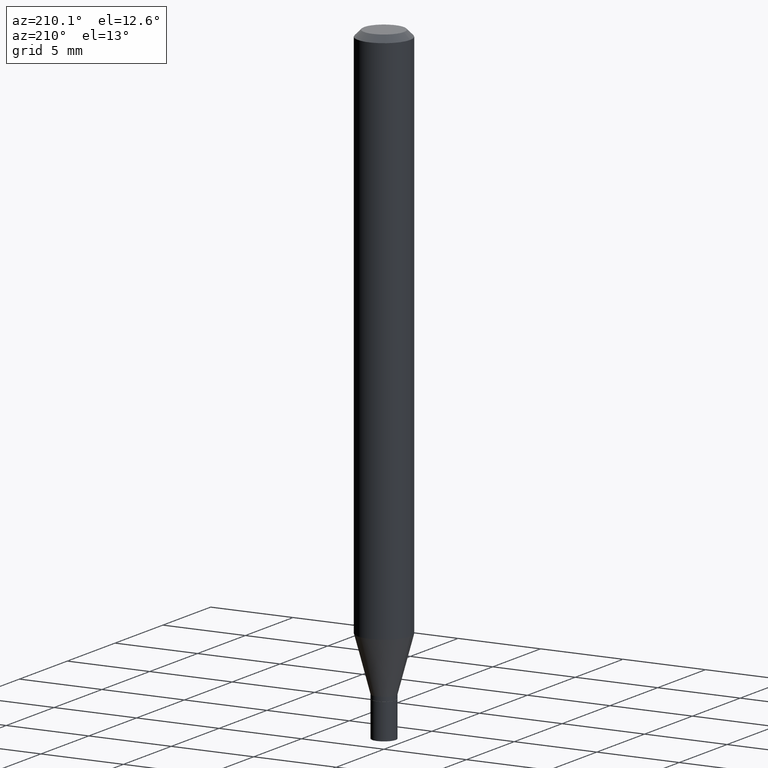
[diagram: clean part render]
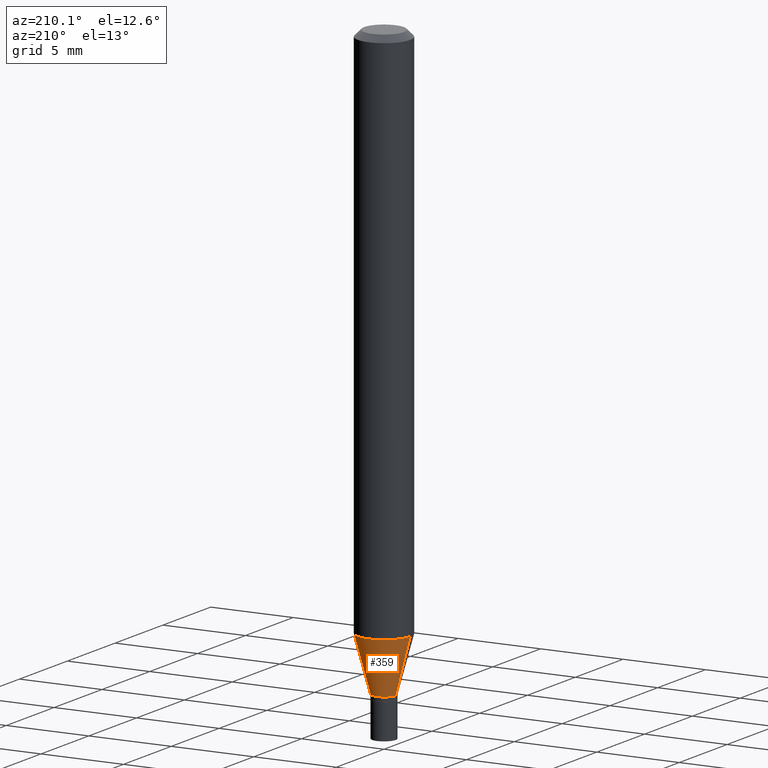
[diagram: same view with one face highlighted and labeled with its STEP entity id]
A machine part, auxiliary view. The second image highlights one B-rep face of the part: STEP entity #359.
In plain terms, the highlighted conical surface has half-angle 15 deg.
Its self-contained STEP definition (entity closure, byte-faithful):
#18 = AXIS2_PLACEMENT_3D ( 'NONE', #85, #369, #216 ) ;
#21 = CARTESIAN_POINT ( 'NONE',  ( -0.02799999999999992426, -4.362728020290356187E-15, -1.406000000000000139 ) ) ;
#29 = EDGE_CURVE ( 'NONE', #347, #386, #73, .T. ) ;
#32 = VERTEX_POINT ( 'NONE', #256 ) ;
#45 = EDGE_CURVE ( 'NONE', #32, #347, #60, .T. ) ;
#56 = DIRECTION ( 'NONE',  ( -2.445468806185136597E-29, 3.491481338843145583E-15, 1.000000000000000000 ) ) ;
#60 = CIRCLE ( 'NONE', #18, 0.02799999999999992426 ) ;
#73 = LINE ( 'NONE', #260, #337 ) ;
#82 = EDGE_CURVE ( 'NONE', #311, #386, #336, .T. ) ;
#85 = CARTESIAN_POINT ( 'NONE',  ( 3.438329141496302499E-29, -4.909022762413463673E-15, -1.406000000000000139 ) ) ;
#87 = DIRECTION ( 'NONE',  ( 1.000000000000000000, -6.982962677686282488E-15, 0.000000000000000000 ) ) ;
#183 = EDGE_CURVE ( 'NONE', #32, #311, #280, .T. ) ;
#197 = ORIENTED_EDGE ( 'NONE', *, *, #82, .F. ) ;
#216 = DIRECTION ( 'NONE',  ( 1.000000000000000000, -6.982962677686282488E-15, 0.000000000000000000 ) ) ;
#225 = CARTESIAN_POINT ( 'NONE',  ( -0.06250000000000000000, -4.015385244180076930E-15, -1.277244247138873634 ) ) ;
#236 = ORIENTED_EDGE ( 'NONE', *, *, #29, .T. ) ;
#256 = CARTESIAN_POINT ( 'NONE',  ( 0.02799999999999992426, -5.104545717388679172E-15, -1.406000000000000139 ) ) ;
#258 = CARTESIAN_POINT ( 'NONE',  ( 3.123460964257534823E-29, -4.459474454030139547E-15, -1.277244247138873634 ) ) ;
#260 = CARTESIAN_POINT ( 'NONE',  ( -0.02799999999999992426, -4.710070796400636233E-15, -1.406000000000000139 ) ) ;
#268 = CONICAL_SURFACE ( 'NONE', #459, 0.02799999999999992426, 0.2617993877991492413 ) ;
#273 = ORIENTED_EDGE ( 'NONE', *, *, #45, .T. ) ;
#277 = ORIENTED_EDGE ( 'NONE', *, *, #183, .F. ) ;
#280 = LINE ( 'NONE', #288, #412 ) ;
#288 = CARTESIAN_POINT ( 'NONE',  ( 0.02799999999999992426, -5.104545717388679172E-15, -1.406000000000000139 ) ) ;
#290 = CARTESIAN_POINT ( 'NONE',  ( 0.06250000000000000000, -4.895909621385532005E-15, -1.277244247138873634 ) ) ;
#307 = CARTESIAN_POINT ( 'NONE',  ( 3.438329141496302499E-29, -4.909022762413463673E-15, -1.406000000000000139 ) ) ;
#311 = VERTEX_POINT ( 'NONE', #290 ) ;
#313 = EDGE_LOOP ( 'NONE', ( #273, #236, #197, #277 ) ) ;
#315 = AXIS2_PLACEMENT_3D ( 'NONE', #258, #56, #451 ) ;
#336 = CIRCLE ( 'NONE', #315, 0.06250000000000000000 ) ;
#337 = VECTOR ( 'NONE', #374, 39.37007874015748143 ) ;
#347 = VERTEX_POINT ( 'NONE', #21 ) ;
#359 = ADVANCED_FACE ( 'NONE', ( #449 ), #268, .T. ) ;
#360 = DIRECTION ( 'NONE',  ( 0.2588190451025205729, 1.565188264969628081E-15, 0.9659258262890684232 ) ) ;
#369 = DIRECTION ( 'NONE',  ( -2.445468806185136597E-29, 3.491481338843145583E-15, 1.000000000000000000 ) ) ;
#374 = DIRECTION ( 'NONE',  ( -0.2588190451025205729, 5.211531920934545520E-15, 0.9659258262890684232 ) ) ;
#386 = VERTEX_POINT ( 'NONE', #225 ) ;
#412 = VECTOR ( 'NONE', #360, 39.37007874015748143 ) ;
#421 = DIRECTION ( 'NONE',  ( -2.445468806185136597E-29, 3.491481338843145583E-15, 1.000000000000000000 ) ) ;
#449 = FACE_OUTER_BOUND ( 'NONE', #313, .T. ) ;
#451 = DIRECTION ( 'NONE',  ( 1.000000000000000000, -6.982962677686262766E-15, 0.000000000000000000 ) ) ;
#459 = AXIS2_PLACEMENT_3D ( 'NONE', #307, #421, #87 ) ;